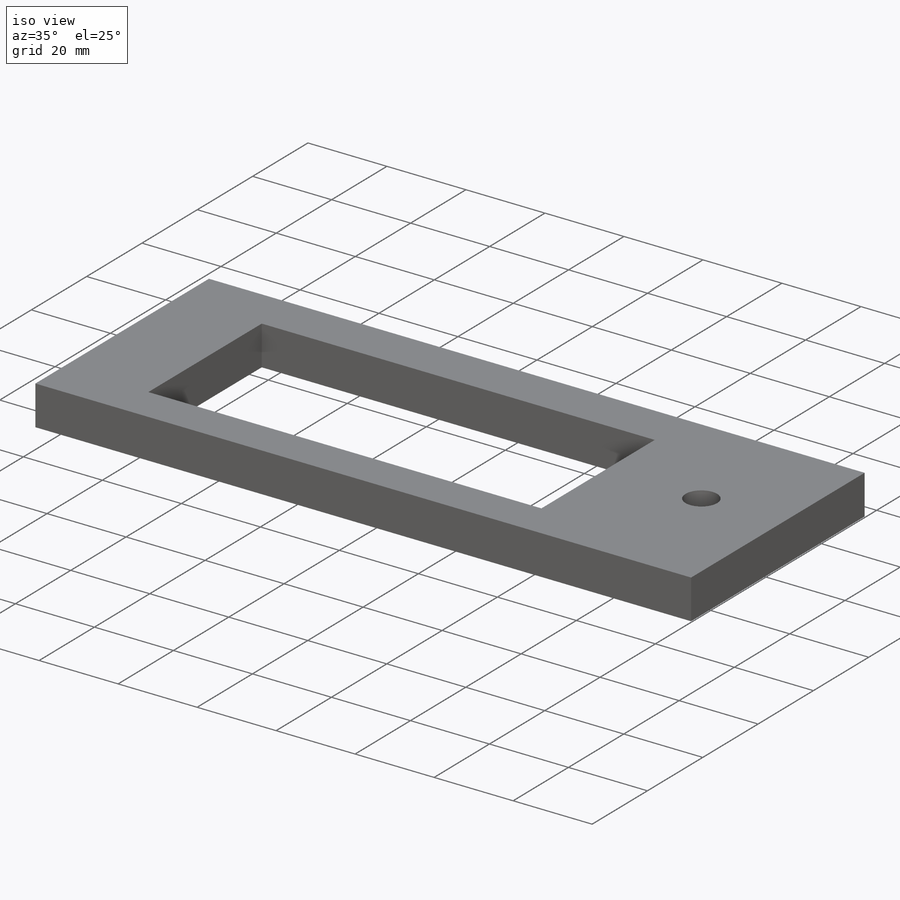
[diagram: iso view]
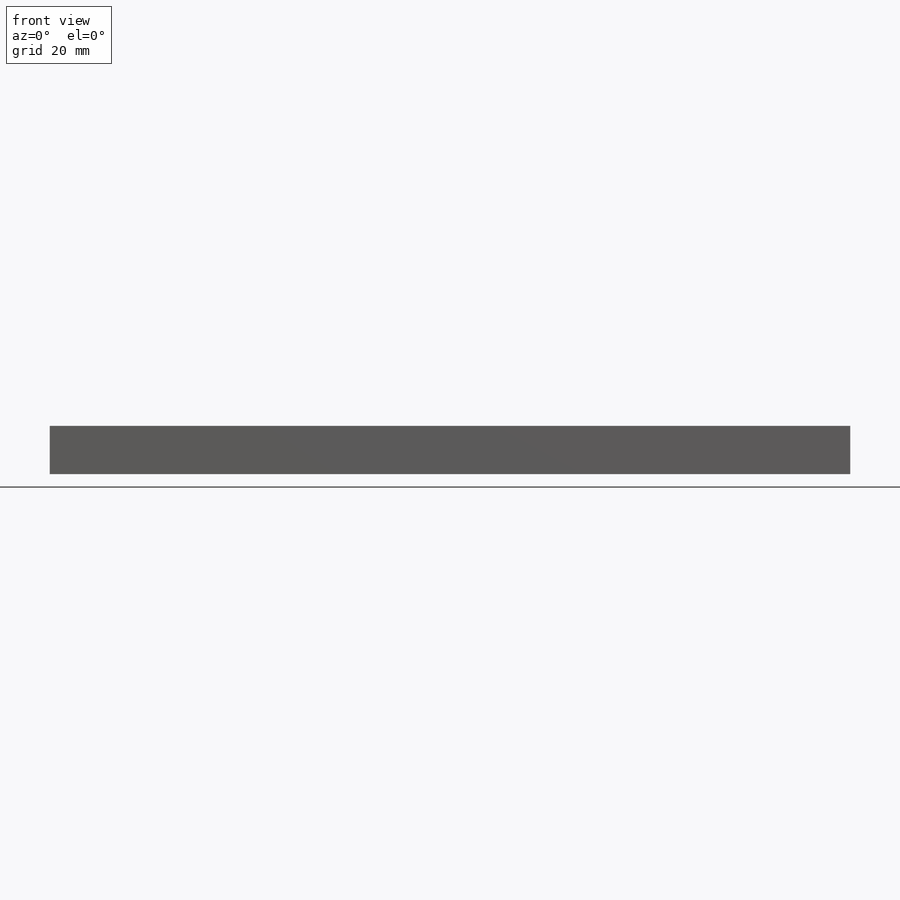
[diagram: front view]
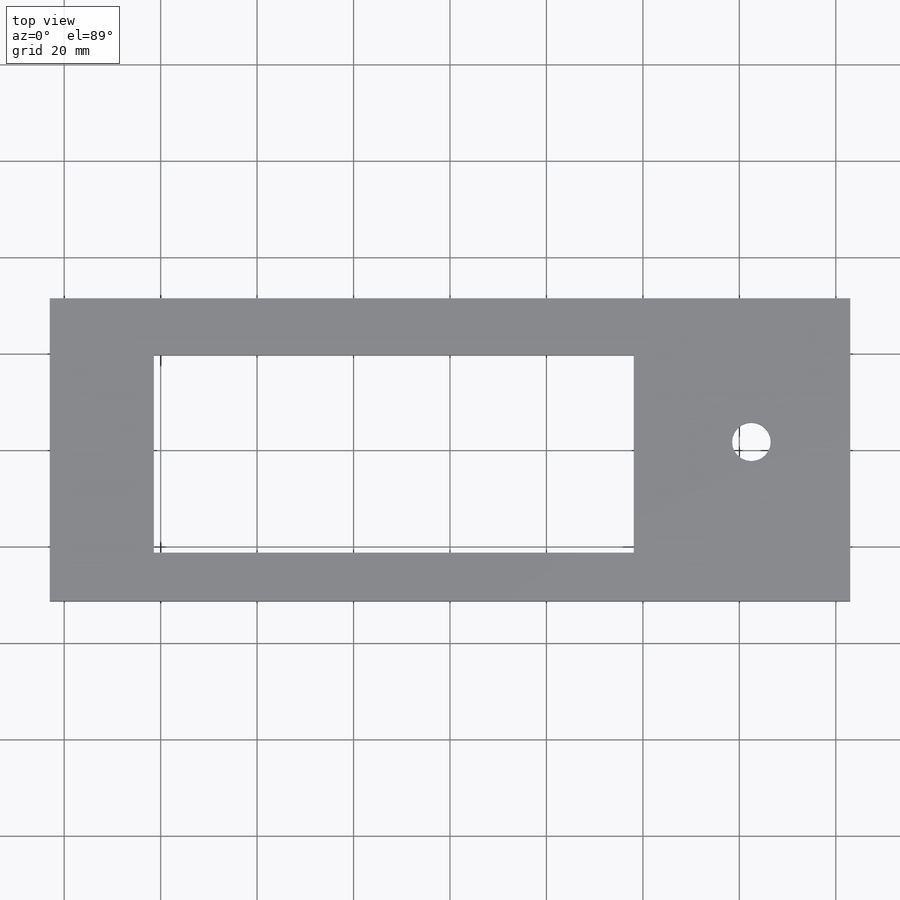
[diagram: top view]
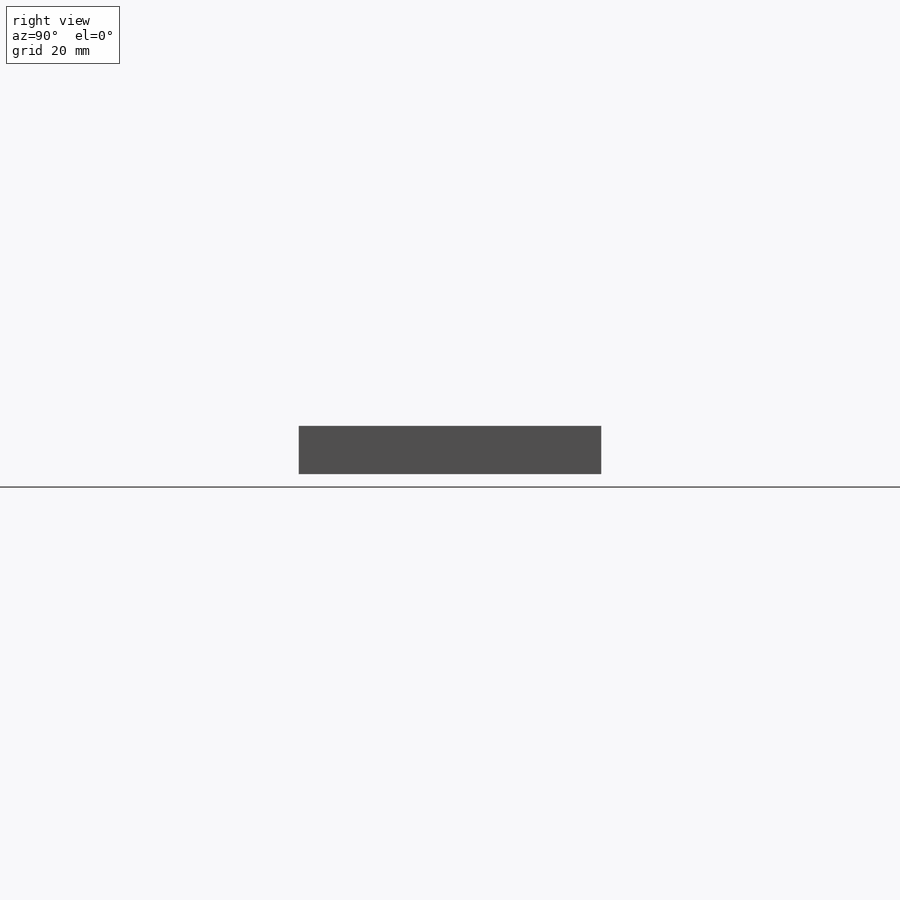
[diagram: right view]
SOLIDWORKS PART (.sldprt)
format: sldprt  version: not decoded by parser v0  size: 422,912 bytes
history: native  units: mm
features: sketch x21, cut_extrude x7, plane x3, hole x3, thread x3, extrude x2, material x1, mirror x1 (+12 scaffold rows collapsed)
feature tree (53):
  scaffold x12  (default folders/planes/origin — collapsed)
  material  "A286 Iron Base Superalloy"
  sketch  "Sketch2"  dims[D1=150.0mm D2=62.75mm]
  extrude  "Boss-Extrude1"  Depth=10mm
  sketch  "Sketch3"  dims[D1=99.5mm D2=41.0mm D3=13.6mm D4=10.0mm]
  cut_extrude  "Cut-Extrude1"  [1 undecoded]
  sketch  "Sketch7"  dims[D1=2.8mm D2=4.0mm D3=0.0mm D4=70.0mm]
  cut_extrude  "Cut-Extrude4"  Depth=7mm
  sketch  "Sketch8"  dims[c1.D1=8.0mm c1.D2=39.39mm c1.D3=12.5mm c2.D2=33.0mm]
  cut_extrude  "Cut-Extrude5"  [1 undecoded]
  sketch  "Sketch9"  dims[c1.D1=13.0mm c1.D2=10.75mm c1.D3=14.0mm c2.D2=52.0mm]
  cut_extrude  "Cut-Extrude6"  Depth=7mm
  sketch  "Sketch10"  dims[c1.D5=7.0mm c1.D1=7.0mm c1.D2=7.0mm c1.D3=8.0mm c1.D4=12.0mm c1.D6=3.5mm c1.D7=3.5mm c2.D1=16.75mm c2.D2=13.0mm]
  cut_extrude  "Cut-Extrude7"  Depth=7mm
  sketch  "Sketch11"  dims[D1=8.0mm D2=8.0mm]
  extrude  "Boss-Extrude2"  [1 undecoded]
  sketch  "Sketch12"  dims[c1.D1=62.75mm c2.D1=45.0deg]
  plane  "Plane1"
  sketch  "Sketch13"  dims[D3=3.0mm D1=4.0mm D2=11.92mm]
  hole  "M3x0.5 Tapped Hole1"  Diameter=2.5mm Depth=20mm
  sketch  "Sketch17"
  sketch  "Sketch16"  dims[hole-wizard template sketch: 47 standard entries collapsed; hole parameters kept: c15.Tap Drill Depth=20.0mm c15.D3=~14.816244mm c15.Drill Angle=118.0deg]
  thread  "Hole Thread1"  Diameter=6mm  [1 undecoded]
  sketch  "Sketch18"  dims[c1.D1=62.75mm c2.D1=45.0deg]
  plane  "Plane2"
  sketch  "Sketch19"  dims[D1=4.0mm D2=16.06mm]
  hole  "M3x0.5 Tapped Hole2"  Diameter=2.5mm Depth=25mm
  sketch  "Sketch21"
  sketch  "Sketch20"  dims[hole-wizard template sketch: 47 standard entries collapsed; hole parameters kept: c15.Tap Drill Depth=25.0mm c15.D3=~14.816244mm c15.Drill Angle=118.0deg]
  thread  "Hole Thread2"  Diameter=6mm  [1 undecoded]
  mirror  "Mirror1"
  sketch  "Sketch23"  dims[c1.D1=62.75mm c2.D1=45.0deg]
  plane  "Plane3"
  sketch  "Sketch24"  dims[c1.D1=16.13mm c1.D2=~17.45449mm c2.D1=10.06mm c2.D2=4.0mm]
  hole  "M3x0.5 Tapped Hole3"  Diameter=2.5mm Depth=21mm
  sketch  "Sketch26"
  sketch  "Sketch27"  dims[hole-wizard template sketch: 47 standard entries collapsed; hole parameters kept: c15.Tap Drill Depth=21.0mm c15.D3=~14.816244mm c15.Drill Angle=118.0deg]
  thread  "Hole Thread3"  Diameter=6mm  [1 undecoded]
  sketch  "Sketch28"  dims[D1=3.0mm D4=3.0mm D2=4.0mm D3=10.0mm D5=10.0mm D6=4.0mm]
  cut_extrude  "Cut-Extrude8"  Depth=5.5mm
  sketch  "Sketch29"
  cut_extrude  "Cut-Extrude9"  Depth=5mm
decode coverage: 29 of 37 modeling features carry decoded parameters
note: ~ marks probable driven/reference dimensions
note: 6 parameter values undecoded
summary: no parameter record found for 3 features
note: suppression state not decoded; provenance and decode notes live in map.json
